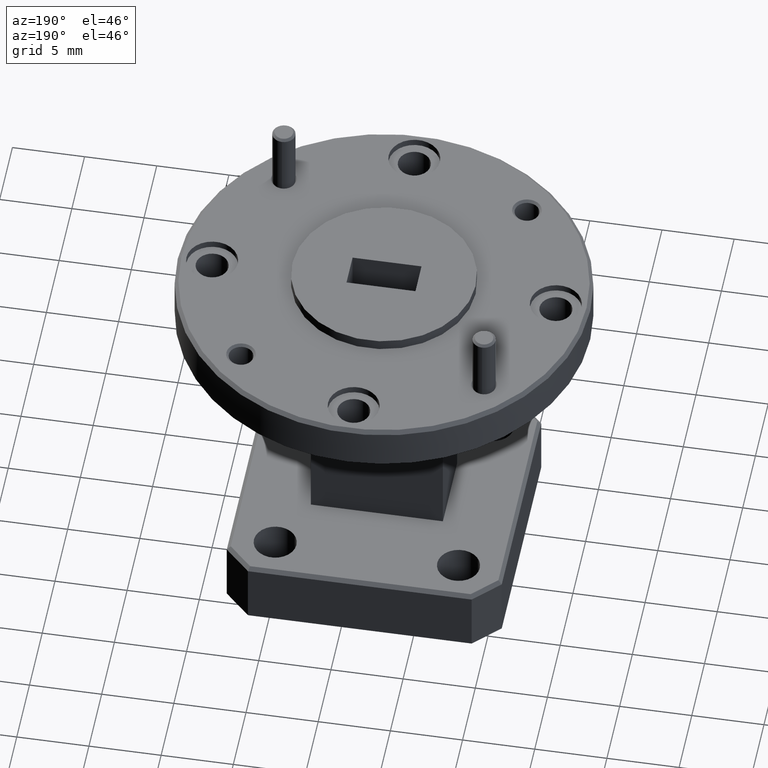
[diagram: clean part render]
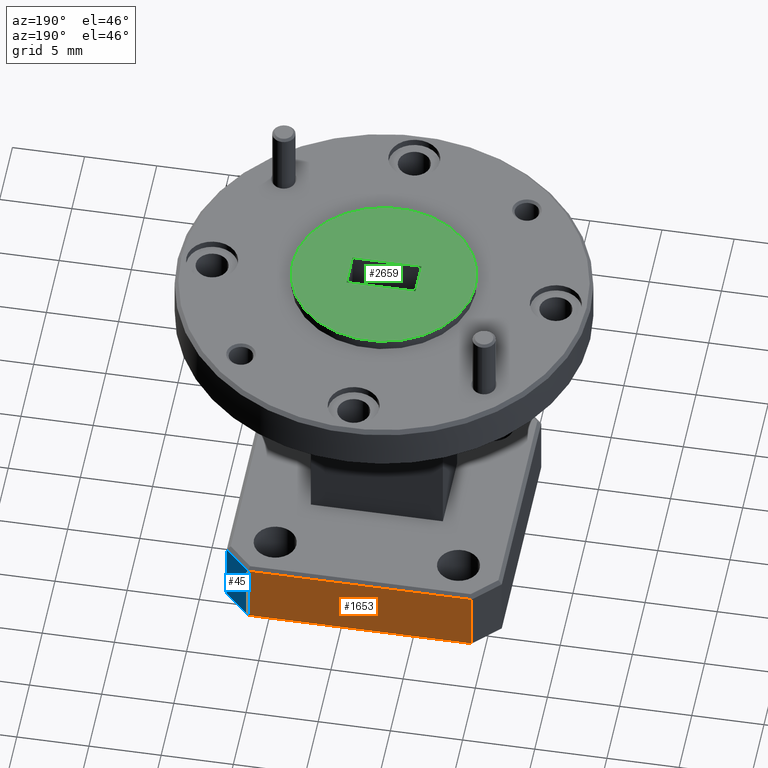
[diagram: same view with three faces highlighted in distinct colors, each labeled with its STEP entity id]
A machine part, auxiliary view with three faces highlighted in distinct colors.
Their STEP definitions:

[orange] entity #1653 — the highlighted planar face has unit normal (0, -1, 0).
#74 = DIRECTION ( 'NONE',  ( -0.0000000000000000000, 0.0000000000000000000, 1.000000000000000000 ) ) ;
#96 = ORIENTED_EDGE ( 'NONE', *, *, #691, .F. ) ;
#214 = ORIENTED_EDGE ( 'NONE', *, *, #664, .F. ) ;
#308 = CARTESIAN_POINT ( 'NONE',  ( -3.511395841607356500, 1.056794478098021200, 0.7387702790670691600 ) ) ;
#492 = PLANE ( 'NONE',  #1172 ) ;
#525 = VERTEX_POINT ( 'NONE', #308 ) ;
#537 = CARTESIAN_POINT ( 'NONE',  ( -2.831395841607355900, 1.056794478098021200, 0.7387702790670692700 ) ) ;
#576 = VECTOR ( 'NONE', #2022, 39.37007874015748100 ) ;
#596 = ORIENTED_EDGE ( 'NONE', *, *, #1213, .T. ) ;
#664 = EDGE_CURVE ( 'NONE', #972, #956, #935, .T. ) ;
#691 = EDGE_CURVE ( 'NONE', #1394, #972, #2840, .T. ) ;
#735 = VECTOR ( 'NONE', #1384, 39.37007874015748100 ) ;
#804 = EDGE_LOOP ( 'NONE', ( #214, #96, #806, #596 ) ) ;
#806 = ORIENTED_EDGE ( 'NONE', *, *, #3213, .F. ) ;
#935 = LINE ( 'NONE', #2361, #1290 ) ;
#936 = CARTESIAN_POINT ( 'NONE',  ( -2.901395841607356200, 1.056794478098021200, 0.7387702790670693800 ) ) ;
#956 = VERTEX_POINT ( 'NONE', #2519 ) ;
#972 = VERTEX_POINT ( 'NONE', #2537 ) ;
#1172 = AXIS2_PLACEMENT_3D ( 'NONE', #1222, #1964, #2957 ) ;
#1213 = EDGE_CURVE ( 'NONE', #525, #956, #2797, .T. ) ;
#1222 = CARTESIAN_POINT ( 'NONE',  ( -2.831395841607355900, 1.056794478098021200, 0.9187702790670693200 ) ) ;
#1290 = VECTOR ( 'NONE', #1575, 39.37007874015748100 ) ;
#1384 = DIRECTION ( 'NONE',  ( -0.0000000000000000000, 0.0000000000000000000, 1.000000000000000000 ) ) ;
#1394 = VERTEX_POINT ( 'NONE', #936 ) ;
#1575 = DIRECTION ( 'NONE',  ( -1.000000000000000000, -0.0000000000000000000, 0.0000000000000000000 ) ) ;
#1645 = CARTESIAN_POINT ( 'NONE',  ( -3.511395841607355600, 1.056794478098021200, 0.9187702790670693200 ) ) ;
#1653 = ADVANCED_FACE ( 'NONE', ( #1891 ), #492, .F. ) ;
#1891 = FACE_OUTER_BOUND ( 'NONE', #804, .T. ) ;
#1964 = DIRECTION ( 'NONE',  ( 0.0000000000000000000, -1.000000000000000000, 0.0000000000000000000 ) ) ;
#2022 = DIRECTION ( 'NONE',  ( 1.000000000000000000, 0.0000000000000000000, 0.0000000000000000000 ) ) ;
#2108 = LINE ( 'NONE', #537, #576 ) ;
#2196 = VECTOR ( 'NONE', #74, 39.37007874015748100 ) ;
#2361 = CARTESIAN_POINT ( 'NONE',  ( -3.206395841607356400, 1.056794478098021200, 0.9087702790670694200 ) ) ;
#2519 = CARTESIAN_POINT ( 'NONE',  ( -3.511395841607355600, 1.056794478098021200, 0.9087702790670694200 ) ) ;
#2537 = CARTESIAN_POINT ( 'NONE',  ( -2.901395841607356200, 1.056794478098021200, 0.9087702790670694200 ) ) ;
#2797 = LINE ( 'NONE', #1645, #735 ) ;
#2823 = CARTESIAN_POINT ( 'NONE',  ( -2.901395841607356200, 1.056794478098021200, 0.9187702790670693200 ) ) ;
#2840 = LINE ( 'NONE', #2823, #2196 ) ;
#2957 = DIRECTION ( 'NONE',  ( 0.0000000000000000000, -0.0000000000000000000, -1.000000000000000000 ) ) ;
#3213 = EDGE_CURVE ( 'NONE', #525, #1394, #2108, .T. ) ;

[blue] entity #45 — the highlighted planar face has unit normal (-0.7071, -0.7071, 0).
#17 = VERTEX_POINT ( 'NONE', #1406 ) ;
#45 = ADVANCED_FACE ( 'NONE', ( #1399 ), #623, .F. ) ;
#74 = DIRECTION ( 'NONE',  ( -0.0000000000000000000, 0.0000000000000000000, 1.000000000000000000 ) ) ;
#115 = CARTESIAN_POINT ( 'NONE',  ( -2.901395841607356200, 1.056794478098021200, 0.9187702790670693200 ) ) ;
#274 = DIRECTION ( 'NONE',  ( -0.0000000000000000000, 0.0000000000000000000, 1.000000000000000000 ) ) ;
#293 = EDGE_CURVE ( 'NONE', #2135, #17, #2865, .T. ) ;
#399 = ORIENTED_EDGE ( 'NONE', *, *, #2353, .F. ) ;
#417 = EDGE_CURVE ( 'NONE', #1394, #2135, #2259, .T. ) ;
#569 = EDGE_LOOP ( 'NONE', ( #399, #1079, #1236, #1344 ) ) ;
#623 = PLANE ( 'NONE',  #3014 ) ;
#691 = EDGE_CURVE ( 'NONE', #1394, #972, #2840, .T. ) ;
#875 = DIRECTION ( 'NONE',  ( 0.7071067811865474600, -0.7071067811865474600, 0.0000000000000000000 ) ) ;
#903 = CARTESIAN_POINT ( 'NONE',  ( -2.831395841607355900, 0.9867944780980212300, 0.9087702790670693100 ) ) ;
#936 = CARTESIAN_POINT ( 'NONE',  ( -2.901395841607356200, 1.056794478098021200, 0.7387702790670693800 ) ) ;
#972 = VERTEX_POINT ( 'NONE', #2537 ) ;
#1079 = ORIENTED_EDGE ( 'NONE', *, *, #293, .F. ) ;
#1094 = VECTOR ( 'NONE', #1917, 39.37007874015748900 ) ;
#1236 = ORIENTED_EDGE ( 'NONE', *, *, #417, .F. ) ;
#1344 = ORIENTED_EDGE ( 'NONE', *, *, #691, .T. ) ;
#1365 = VECTOR ( 'NONE', #274, 39.37007874015748100 ) ;
#1394 = VERTEX_POINT ( 'NONE', #936 ) ;
#1399 = FACE_OUTER_BOUND ( 'NONE', #569, .T. ) ;
#1406 = CARTESIAN_POINT ( 'NONE',  ( -2.831395841607355900, 0.9867944780980212300, 0.9087702790670694200 ) ) ;
#1592 = VECTOR ( 'NONE', #2290, 39.37007874015748900 ) ;
#1917 = DIRECTION ( 'NONE',  ( -0.7071067811865474600, 0.7071067811865474600, -1.379791601064902100E-015 ) ) ;
#2135 = VERTEX_POINT ( 'NONE', #3101 ) ;
#2196 = VECTOR ( 'NONE', #74, 39.37007874015748100 ) ;
#2243 = CARTESIAN_POINT ( 'NONE',  ( -2.831395841607355900, 0.9867944780980212300, 0.9187702790670693200 ) ) ;
#2259 = LINE ( 'NONE', #2763, #1592 ) ;
#2290 = DIRECTION ( 'NONE',  ( 0.7071067811865474600, -0.7071067811865474600, 0.0000000000000000000 ) ) ;
#2353 = EDGE_CURVE ( 'NONE', #17, #972, #2398, .T. ) ;
#2368 = DIRECTION ( 'NONE',  ( -0.7071067811865475700, -0.7071067811865475700, 0.0000000000000000000 ) ) ;
#2398 = LINE ( 'NONE', #903, #1094 ) ;
#2537 = CARTESIAN_POINT ( 'NONE',  ( -2.901395841607356200, 1.056794478098021200, 0.9087702790670694200 ) ) ;
#2763 = CARTESIAN_POINT ( 'NONE',  ( -2.901395841607356200, 1.056794478098021200, 0.7387702790670691600 ) ) ;
#2823 = CARTESIAN_POINT ( 'NONE',  ( -2.901395841607356200, 1.056794478098021200, 0.9187702790670693200 ) ) ;
#2840 = LINE ( 'NONE', #2823, #2196 ) ;
#2865 = LINE ( 'NONE', #2243, #1365 ) ;
#3014 = AXIS2_PLACEMENT_3D ( 'NONE', #115, #2368, #875 ) ;
#3101 = CARTESIAN_POINT ( 'NONE',  ( -2.831395841607355900, 0.9867944780980213400, 0.7387702790670692700 ) ) ;

[green] entity #2659 — the highlighted planar face has unit normal (0, 0, 1).
#12 = EDGE_CURVE ( 'NONE', #1040, #1078, #1429, .T. ) ;
#42 = DIRECTION ( 'NONE',  ( -0.0000000000000000000, -0.0000000000000000000, -1.000000000000000000 ) ) ;
#59 = LINE ( 'NONE', #2922, #448 ) ;
#78 = AXIS2_PLACEMENT_3D ( 'NONE', #2145, #1178, #1910 ) ;
#137 = FACE_OUTER_BOUND ( 'NONE', #2999, .T. ) ;
#397 = VERTEX_POINT ( 'NONE', #790 ) ;
#400 = CARTESIAN_POINT ( 'NONE',  ( -3.206395841607356400, 0.7287944780980215600, 1.728770279067069400 ) ) ;
#415 = LINE ( 'NONE', #400, #1157 ) ;
#448 = VECTOR ( 'NONE', #1414, 39.37007874015748100 ) ;
#640 = ORIENTED_EDGE ( 'NONE', *, *, #1570, .T. ) ;
#653 = CIRCLE ( 'NONE', #78, 0.2499999999999998100 ) ;
#765 = CARTESIAN_POINT ( 'NONE',  ( -3.206395841607356400, 0.6817944780980216300, 1.728770279067069400 ) ) ;
#790 = CARTESIAN_POINT ( 'NONE',  ( -2.956395841607356400, 0.6817944780980216300, 1.728770279067069400 ) ) ;
#814 = DIRECTION ( 'NONE',  ( 1.000000000000000000, 0.0000000000000000000, -0.0000000000000000000 ) ) ;
#1040 = VERTEX_POINT ( 'NONE', #2275 ) ;
#1078 = VERTEX_POINT ( 'NONE', #3075 ) ;
#1157 = VECTOR ( 'NONE', #1168, 39.37007874015748100 ) ;
#1168 = DIRECTION ( 'NONE',  ( 1.000000000000000000, 0.0000000000000000000, -0.0000000000000000000 ) ) ;
#1178 = DIRECTION ( 'NONE',  ( -0.0000000000000000000, -0.0000000000000000000, -1.000000000000000000 ) ) ;
#1192 = ORIENTED_EDGE ( 'NONE', *, *, #1812, .F. ) ;
#1212 = AXIS2_PLACEMENT_3D ( 'NONE', #3025, #2309, #814 ) ;
#1294 = PLANE ( 'NONE',  #1212 ) ;
#1414 = DIRECTION ( 'NONE',  ( 0.0000000000000000000, -1.000000000000000000, -0.0000000000000000000 ) ) ;
#1419 = VERTEX_POINT ( 'NONE', #3168 ) ;
#1429 = LINE ( 'NONE', #2877, #2389 ) ;
#1479 = DIRECTION ( 'NONE',  ( -1.000000000000000000, -0.0000000000000000000, 0.0000000000000000000 ) ) ;
#1541 = DIRECTION ( 'NONE',  ( -1.000000000000000000, 0.0000000000000000000, 0.0000000000000000000 ) ) ;
#1565 = EDGE_CURVE ( 'NONE', #1078, #3004, #415, .T. ) ;
#1570 = EDGE_CURVE ( 'NONE', #3004, #1419, #59, .T. ) ;
#1611 = ORIENTED_EDGE ( 'NONE', *, *, #12, .T. ) ;
#1672 = AXIS2_PLACEMENT_3D ( 'NONE', #765, #42, #1541 ) ;
#1723 = EDGE_CURVE ( 'NONE', #1419, #1040, #2820, .T. ) ;
#1803 = ORIENTED_EDGE ( 'NONE', *, *, #1723, .T. ) ;
#1812 = EDGE_CURVE ( 'NONE', #397, #2131, #2939, .T. ) ;
#1815 = VECTOR ( 'NONE', #1479, 39.37007874015748100 ) ;
#1896 = DIRECTION ( 'NONE',  ( -0.0000000000000000000, 1.000000000000000000, 0.0000000000000000000 ) ) ;
#1909 = CARTESIAN_POINT ( 'NONE',  ( -3.112395841607356500, 0.7287944780980215600, 1.728770279067069400 ) ) ;
#1910 = DIRECTION ( 'NONE',  ( -1.000000000000000000, 0.0000000000000000000, 0.0000000000000000000 ) ) ;
#2049 = ORIENTED_EDGE ( 'NONE', *, *, #1565, .T. ) ;
#2131 = VERTEX_POINT ( 'NONE', #3107 ) ;
#2145 = CARTESIAN_POINT ( 'NONE',  ( -3.206395841607356400, 0.6817944780980216300, 1.728770279067069400 ) ) ;
#2247 = FACE_BOUND ( 'NONE', #2729, .T. ) ;
#2275 = CARTESIAN_POINT ( 'NONE',  ( -3.300395841607356200, 0.6347944780980215900, 1.728770279067069400 ) ) ;
#2304 = EDGE_CURVE ( 'NONE', #2131, #397, #653, .T. ) ;
#2309 = DIRECTION ( 'NONE',  ( 0.0000000000000000000, 0.0000000000000000000, 1.000000000000000000 ) ) ;
#2389 = VECTOR ( 'NONE', #1896, 39.37007874015748100 ) ;
#2659 = ADVANCED_FACE ( 'NONE', ( #137, #2247 ), #1294, .T. ) ;
#2729 = EDGE_LOOP ( 'NONE', ( #1611, #2049, #640, #1803 ) ) ;
#2820 = LINE ( 'NONE', #2962, #1815 ) ;
#2877 = CARTESIAN_POINT ( 'NONE',  ( -3.300395841607356200, 0.6817944780980216300, 1.728770279067069400 ) ) ;
#2897 = ORIENTED_EDGE ( 'NONE', *, *, #2304, .F. ) ;
#2922 = CARTESIAN_POINT ( 'NONE',  ( -3.112395841607356500, 0.6817944780980216300, 1.728770279067069400 ) ) ;
#2939 = CIRCLE ( 'NONE', #1672, 0.2499999999999998100 ) ;
#2962 = CARTESIAN_POINT ( 'NONE',  ( -3.206395841607356400, 0.6347944780980215900, 1.728770279067069400 ) ) ;
#2999 = EDGE_LOOP ( 'NONE', ( #2897, #1192 ) ) ;
#3004 = VERTEX_POINT ( 'NONE', #1909 ) ;
#3025 = CARTESIAN_POINT ( 'NONE',  ( -3.206395841607356400, 0.6817944780980216300, 1.728770279067069400 ) ) ;
#3075 = CARTESIAN_POINT ( 'NONE',  ( -3.300395841607356200, 0.7287944780980215600, 1.728770279067069400 ) ) ;
#3107 = CARTESIAN_POINT ( 'NONE',  ( -3.456395841607355900, 0.6817944780980216300, 1.728770279067069400 ) ) ;
#3168 = CARTESIAN_POINT ( 'NONE',  ( -3.112395841607356500, 0.6347944780980215900, 1.728770279067069400 ) ) ;